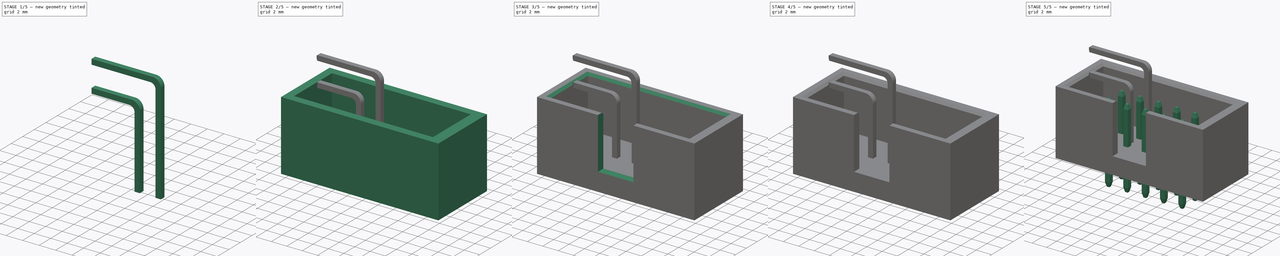
[diagram: build sequence overview — one tinted view per stage of 5, left to right]
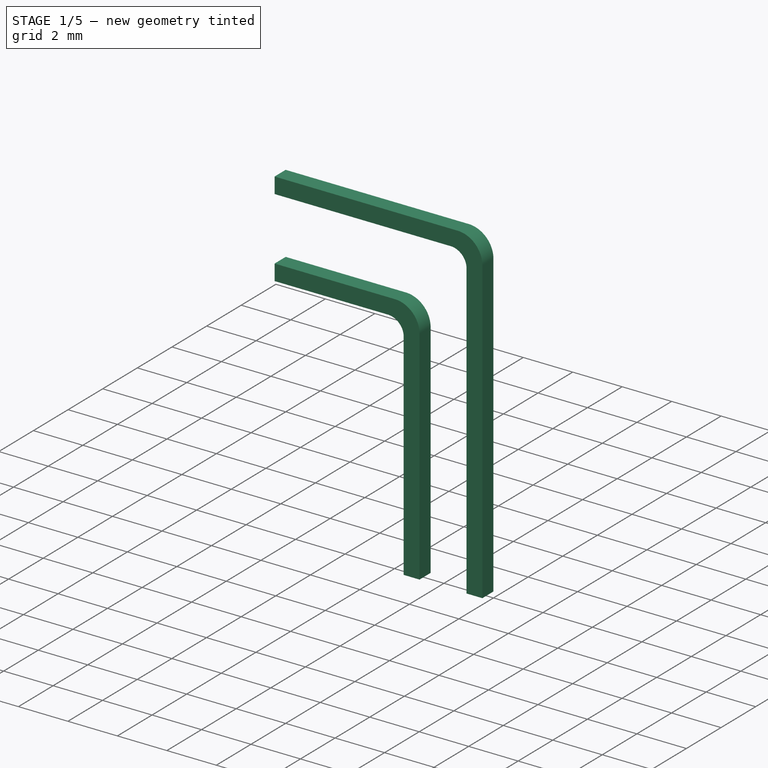
[diagram: stage 1 of 5 — iso view after this stage's code; geometry added in this stage tinted green]
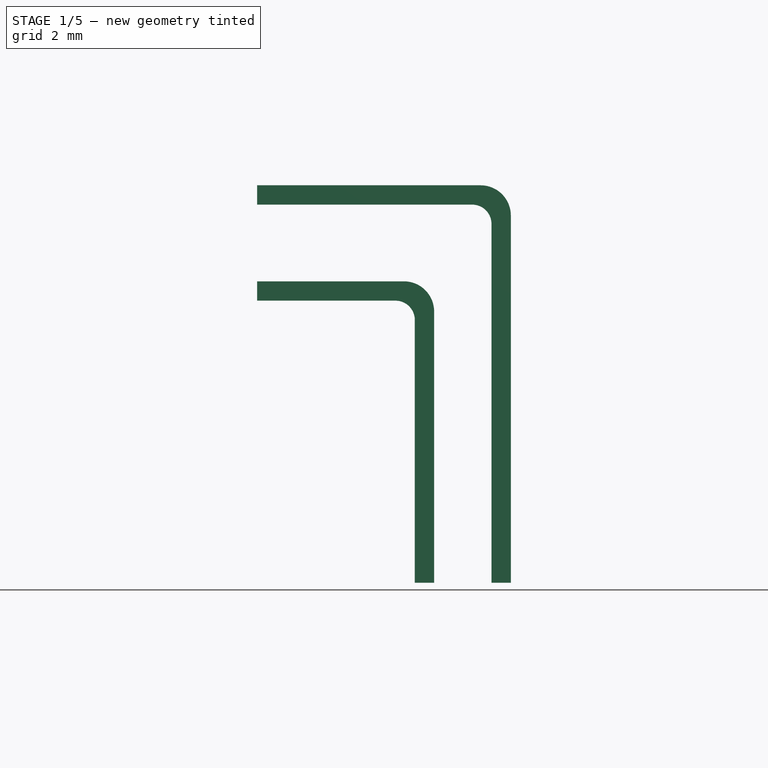
[diagram: stage 1 of 5 — front view after this stage's code; geometry added in this stage tinted green]
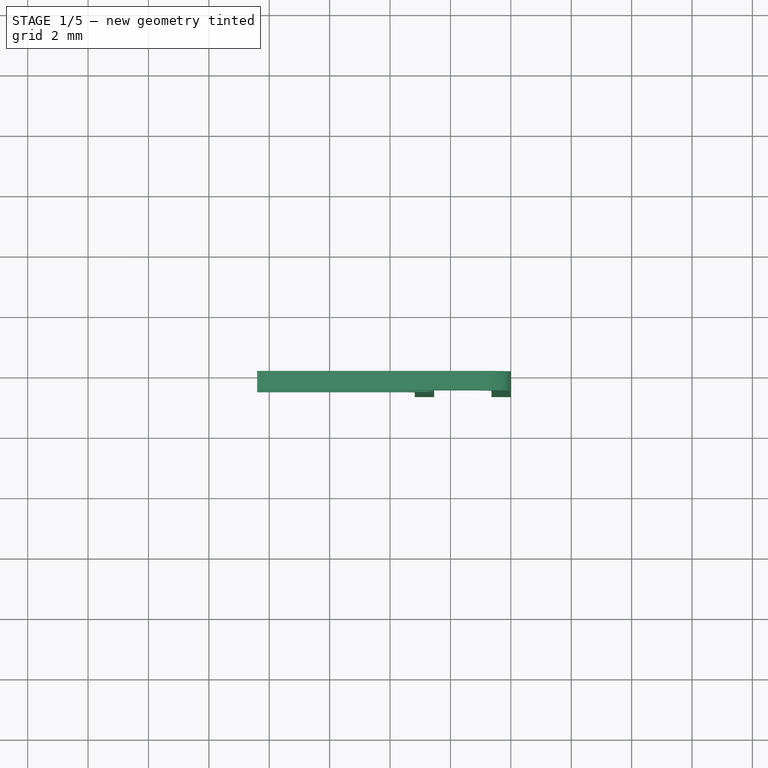
[diagram: stage 1 of 5 — top view after this stage's code; geometry added in this stage tinted green]
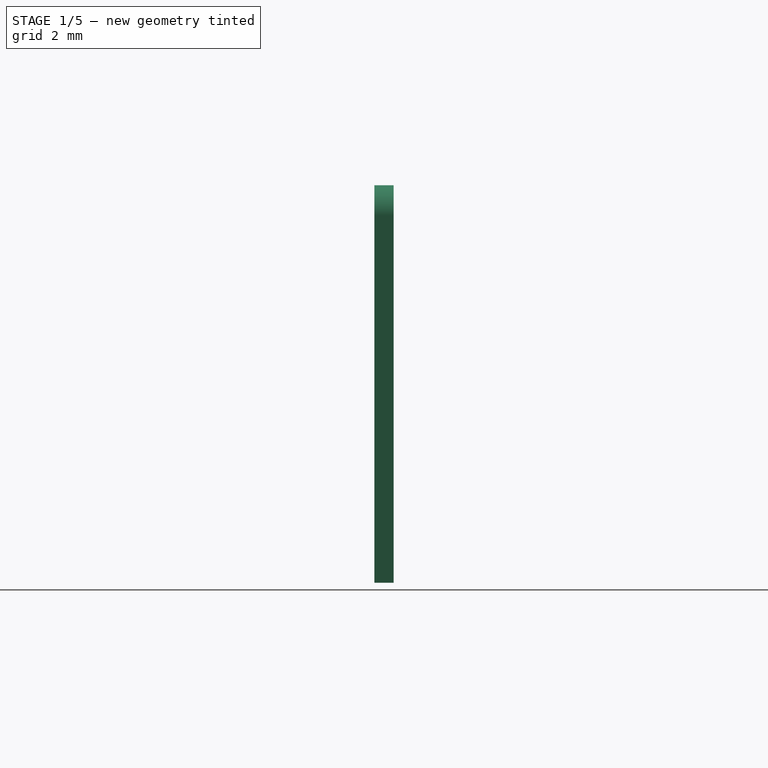
[diagram: stage 1 of 5 — right view after this stage's code; geometry added in this stage tinted green]
FCSTD DOCUMENT  (FreeCAD 0.16R6706 (Git))
Label: IDC10
License: All rights reserved
LicenseURL: http://en.wikipedia.org/wiki/All_rights_reserved
objects: Part::Box×4, Part::Cylinder×4, Part::Chamfer×2, Part::Cut×2, PartDesign::Fillet×2, Part::FeaturePython×1, Sketcher::SketchObject×1, PartDesign::Pad×1, PartDesign::Chamfer×1
note: 19 computed .brp shape members not serialized (recipe doc carries the construction recipe); baked Part::Feature solids carry a one-line shape summary decoded from their .brp

FEATURE [Sketcher::SketchObject] Sketch
  Placement = pos=(0,0,0) rot=(-1,0,0;4.71239rad)
  sketch-geometry (12):
    g0: LineSegment StartX=0 StartY=0 StartZ=0 EndX=0 EndY=13.16 EndZ=0
    g1: LineSegment StartX=0 StartY=13.16 StartZ=0 EndX=-8.4 EndY=13.16 EndZ=0
    g2: LineSegment StartX=-8.4 StartY=13.16 StartZ=0 EndX=-8.4 EndY=12.52 EndZ=0
    g3: LineSegment StartX=-8.4 StartY=12.52 StartZ=0 EndX=-0.64 EndY=12.52 EndZ=0
    g4: LineSegment StartX=-0.64 StartY=12.52 StartZ=0 EndX=-0.64 EndY=0 EndZ=0
    g5: LineSegment StartX=-0.64 StartY=0 StartZ=0 EndX=0 EndY=0 EndZ=0
    g6: LineSegment StartX=-2.54 StartY=0 StartZ=0 EndX=-2.54 EndY=9.98 EndZ=0
    g7: LineSegment StartX=-8.4 StartY=9.34 StartZ=0 EndX=-8.4 EndY=9.98 EndZ=0
    g8: LineSegment StartX=-3.18 StartY=9.34 StartZ=0 EndX=-3.18 EndY=0 EndZ=0
    g9: LineSegment StartX=-3.18 StartY=0 StartZ=0 EndX=-2.54 EndY=0 EndZ=0
    g10: LineSegment StartX=-8.4 StartY=9.98 StartZ=0 EndX=-2.54 EndY=9.98 EndZ=0
    g11: LineSegment StartX=-8.4 StartY=9.34 StartZ=0 EndX=-3.18 EndY=9.34 EndZ=0
  constraints (35):
    c: Coincident(g-1,g0)
    c: PointOnObject(g0,g-2)
    c: Coincident(g0,g1)
    c: Horizontal(g1)
    c: Coincident(g1,g2)
    c: Vertical(g2)
    c: Coincident(g2,g3)
    c: Horizontal(g3)
    c: Coincident(g3,g4)
    c: PointOnObject(g4,g-1)
    c: Vertical(g4)
    c: Coincident(g4,g5)
    c: Coincident(g5,g-1)
    c: DistanceX(g5,g5) = 0.64
    c: DistanceY(g0,g0) = 13.16
    c: DistanceX(g1,g1) = 8.4
    c: PointOnObject(g6,g-1)
    c: Vertical(g6)
    c: Vertical(g7)
    c: PointOnObject(g8,g-1)
    c: Vertical(g8)
    c: Coincident(g8,g9)
    c: Coincident(g9,g6)
    c: DistanceX(g8,g4) = 2.54
    c: Equal(g5,g2)
    c: Equal(g2,g7)
    c: Equal(g7,g9)
    c: Coincident(g10,g7)
    c: Coincident(g10,g6)
    c: Horizontal(g10)
    c: Coincident(g11,g7)
    c: Coincident(g11,g8)
    c: Horizontal(g11)
    c: DistanceY(g7,g2) = 2.54
    c: DistanceX(g2,g7) = 0
FEATURE [PartDesign::Pad] Pad
  Length = 0.64
  Length2 = 100
  Placement = pos=(0,0,0) rot=(-1,0,0;4.71239rad)
  Sketch = -> Sketch
  Type = 0
FEATURE [PartDesign::Fillet] Fillet
  Base = -> Pad [Edge20,Edge11]
  Placement = pos=(0,0,0) rot=(-1,0,0;4.71239rad)
  Radius = 0.64
FEATURE [PartDesign::Fillet] Fillet001
  Base = -> Fillet [Edge20,Edge41]
  Placement = pos=(0,0,0) rot=(-1,0,0;4.71239rad)
  Radius = 1
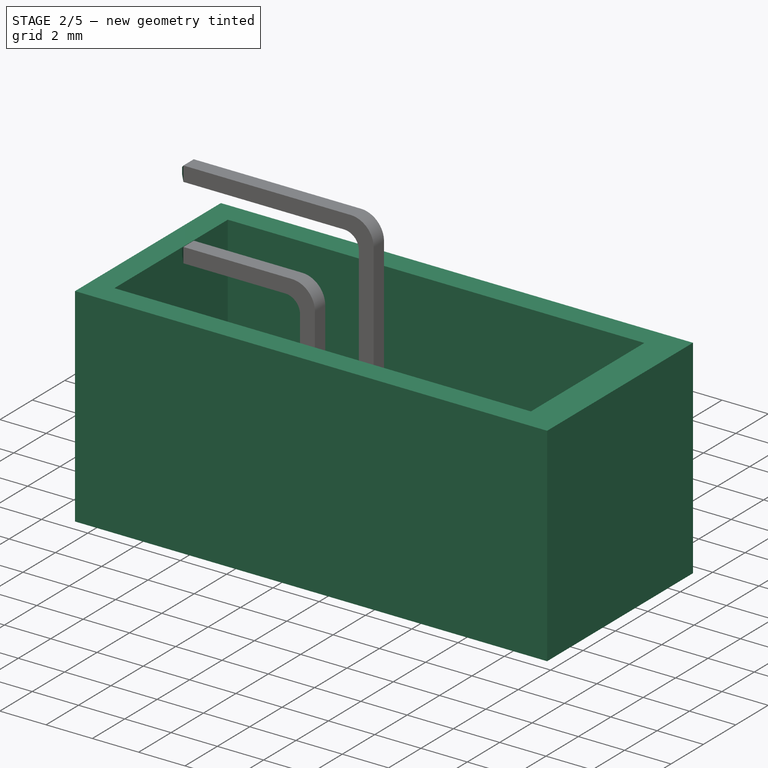
[diagram: stage 2 of 5 — iso view after this stage's code; geometry added in this stage tinted green]
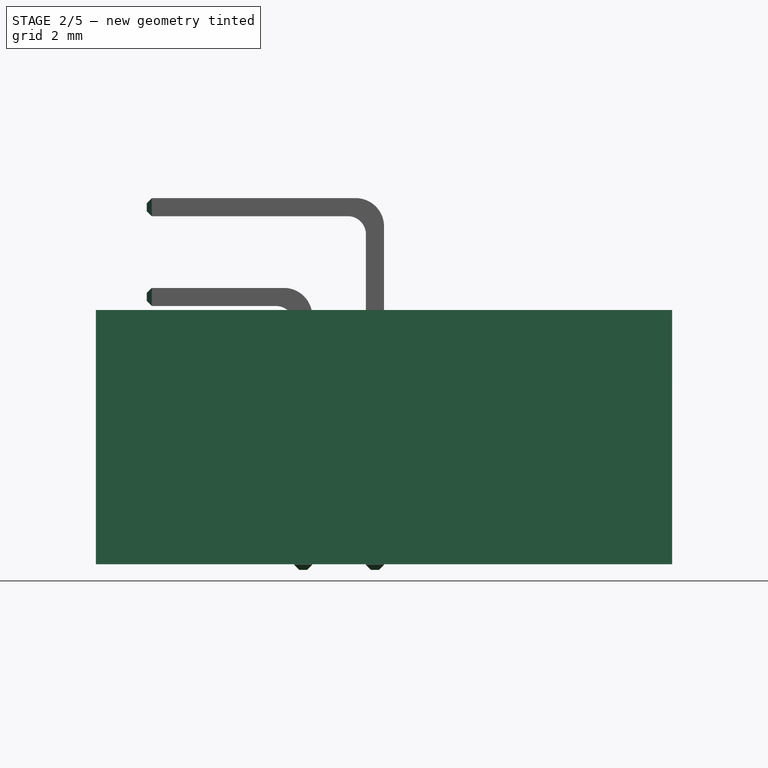
[diagram: stage 2 of 5 — front view after this stage's code; geometry added in this stage tinted green]
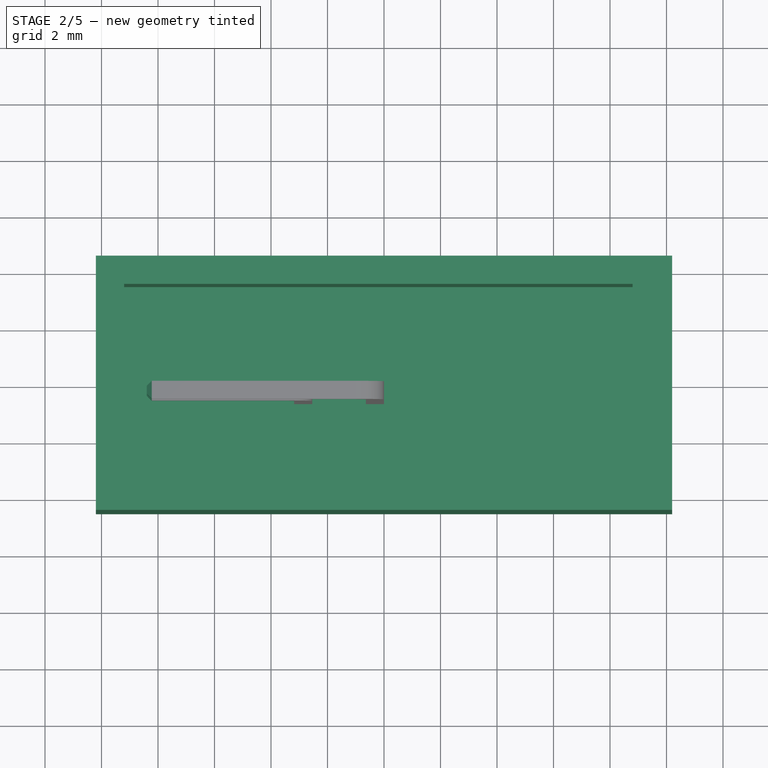
[diagram: stage 2 of 5 — top view after this stage's code; geometry added in this stage tinted green]
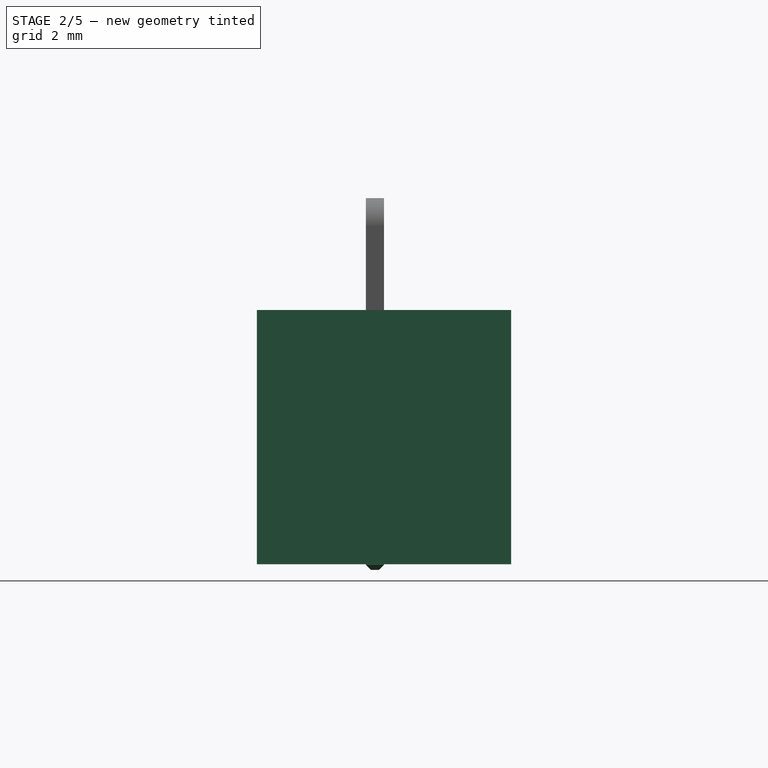
[diagram: stage 2 of 5 — right view after this stage's code; geometry added in this stage tinted green]
FEATURE [Part::Box] Box002  label="Cube002"
  Height = 9
  Length = 20.4
  Placement = pos=(-10.2,-4.5,0.2) rot=(0,0,1;0rad)
  Width = 9
FEATURE [Part::Box] Box003  label="Cube003"
  Height = 6.65
  Length = 18
  Placement = pos=(-9.2,-3.5,2.55) rot=(0,0,1;0rad)
  Width = 7
FEATURE [Part::Cut] Cut
  Base = -> Box002
  Tool = -> Box003
FEATURE [PartDesign::Chamfer] Chamfer002
  Base = -> Fillet001 [Edge27,Edge34,Edge39,Edge38,Edge3,Edge15,Edge10,Edge14,Edge40,Edge44,Edge30,Edge45,Edge21,Edge20,Edge16,Edge6]
  Placement = pos=(0,0,0) rot=(-1,0,0;4.71239rad)
  Size = 0.18
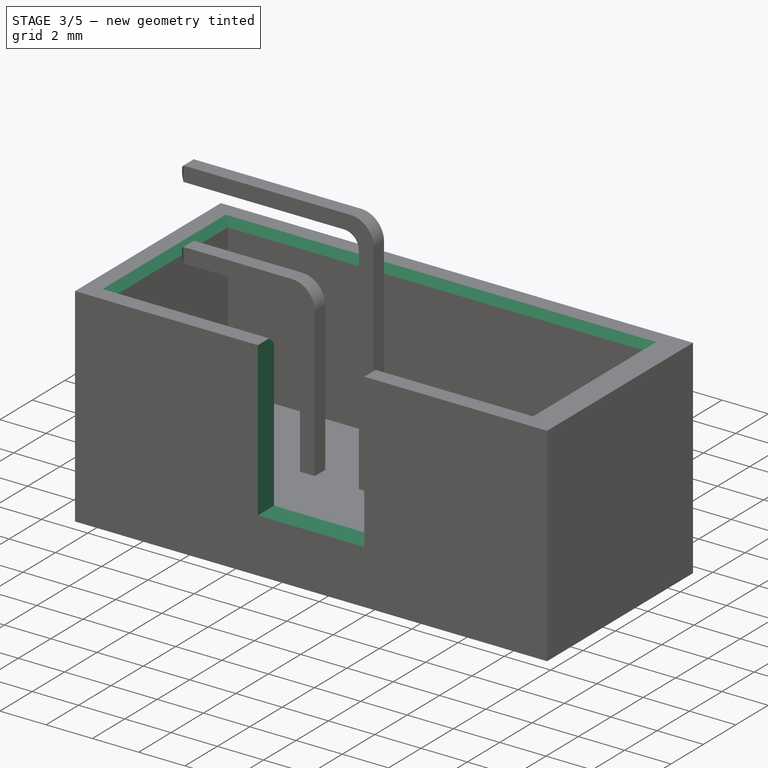
[diagram: stage 3 of 5 — iso view after this stage's code; geometry added in this stage tinted green]
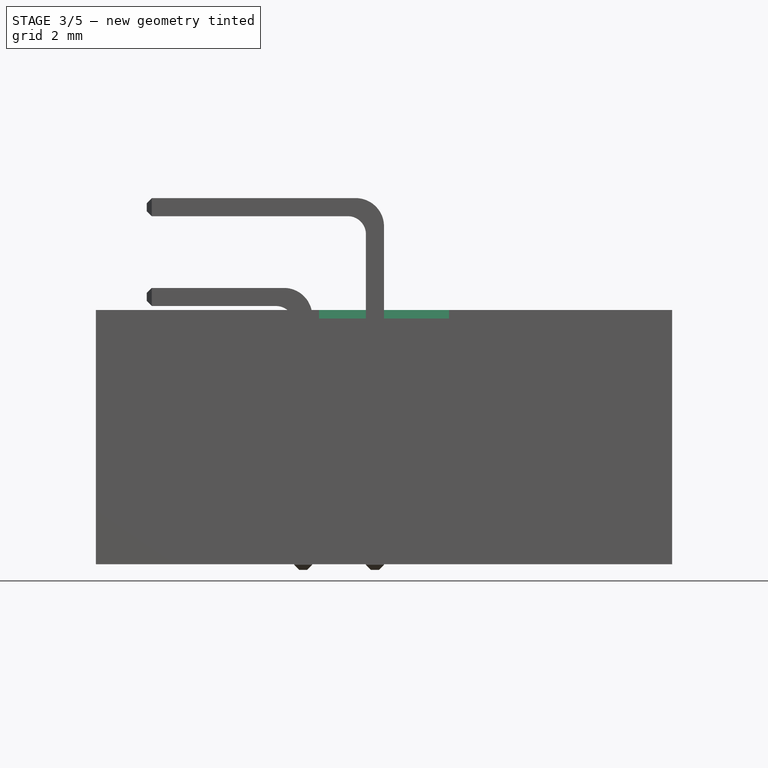
[diagram: stage 3 of 5 — front view after this stage's code; geometry added in this stage tinted green]
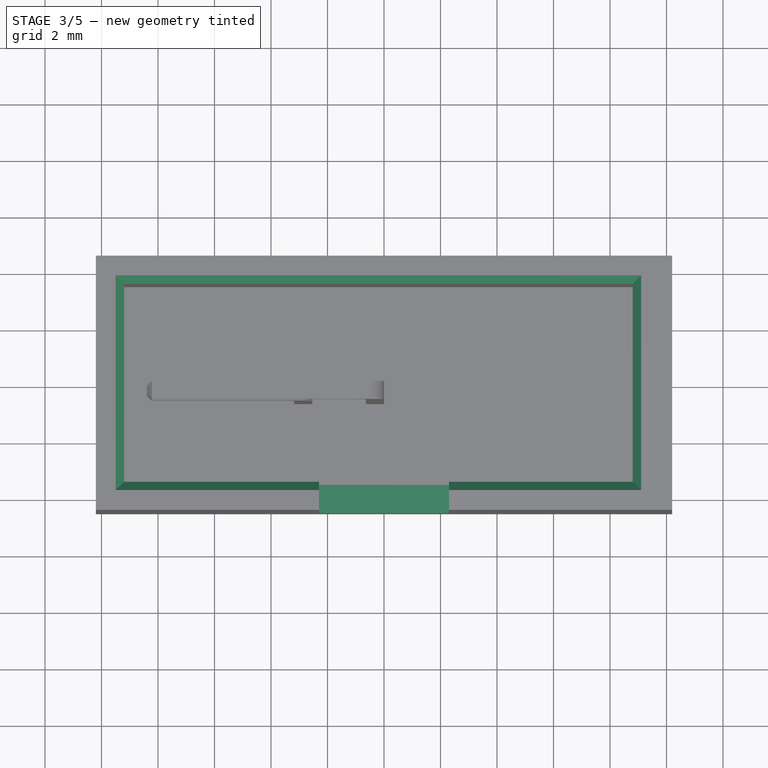
[diagram: stage 3 of 5 — top view after this stage's code; geometry added in this stage tinted green]
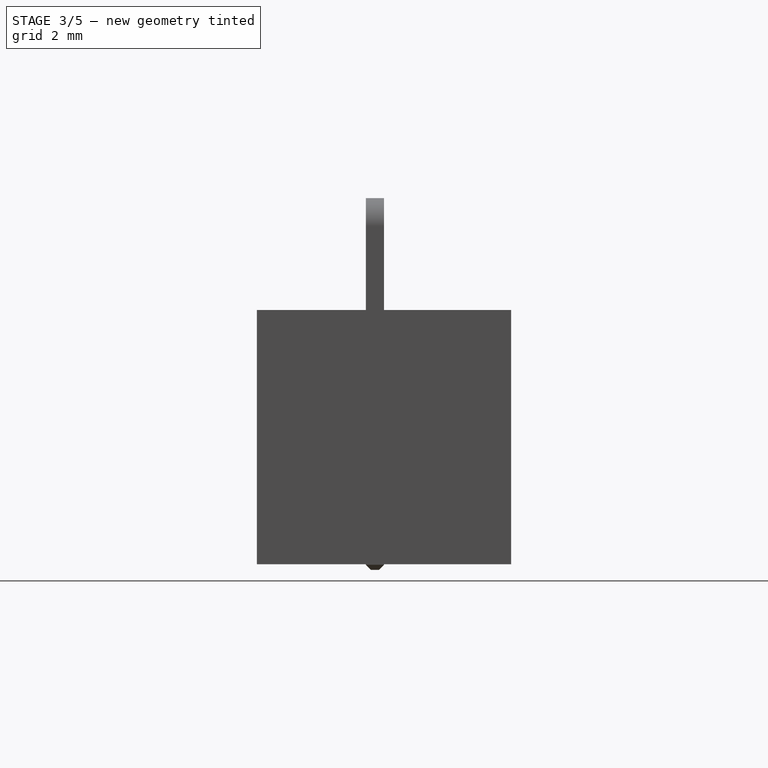
[diagram: stage 3 of 5 — right view after this stage's code; geometry added in this stage tinted green]
FEATURE [Part::Box] Box004  label="Cube004"
  Height = 6.65
  Length = 4.6
  Placement = pos=(-2.3,-5,2.55) rot=(0,0,1;0rad)
  Width = 2
FEATURE [Part::Cut] Cut001
  Base = -> Cut
  Tool = -> Box004
FEATURE [Part::Chamfer] Chamfer001
  Base = -> Cut001
  Edges = 5 edges r=0.3: [Edge15,Edge16,Edge17,Edge18,Edge19]
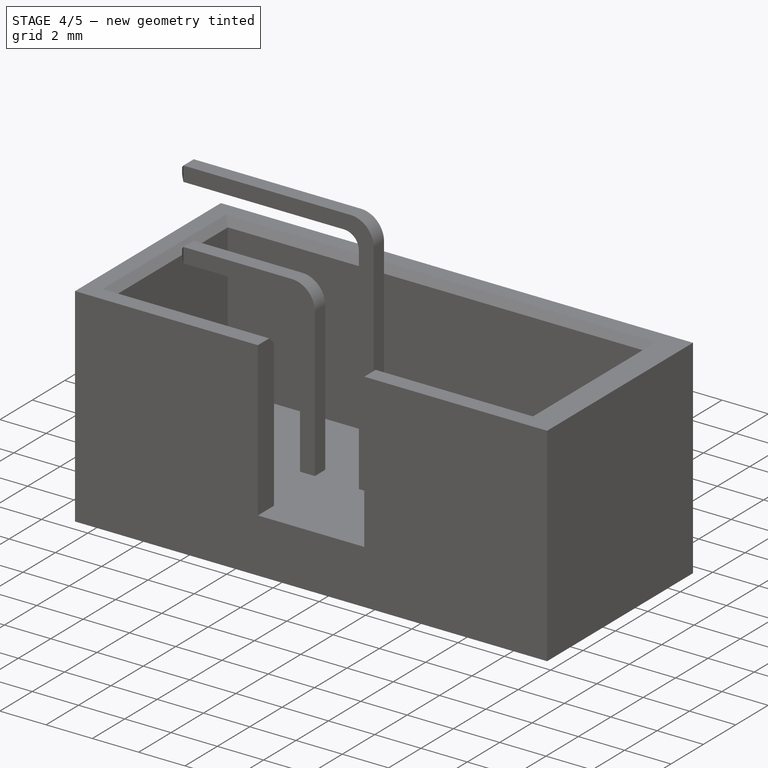
[diagram: stage 4 of 5 — iso view after this stage's code; geometry added in this stage tinted green]
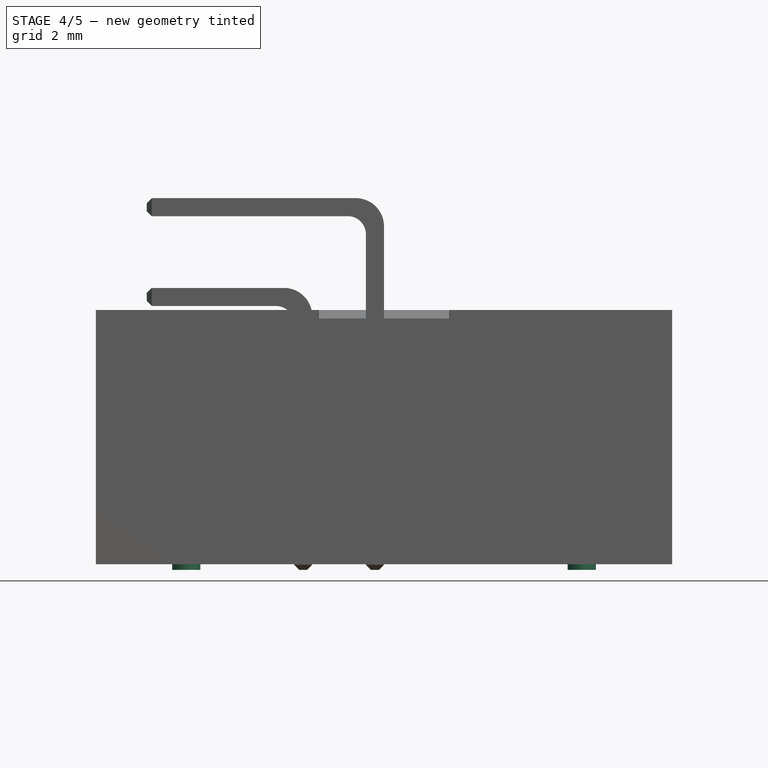
[diagram: stage 4 of 5 — front view after this stage's code; geometry added in this stage tinted green]
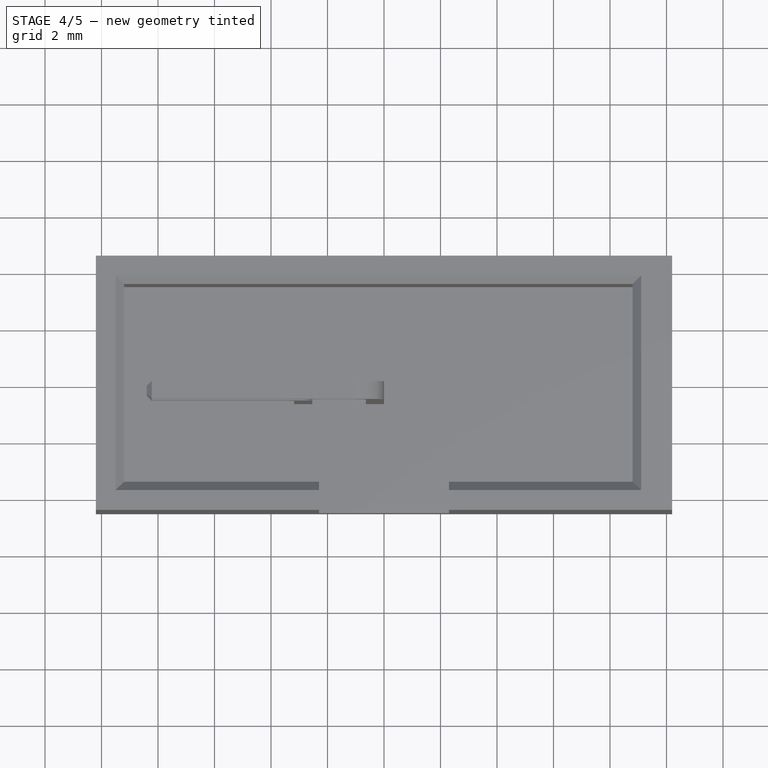
[diagram: stage 4 of 5 — top view after this stage's code; geometry added in this stage tinted green]
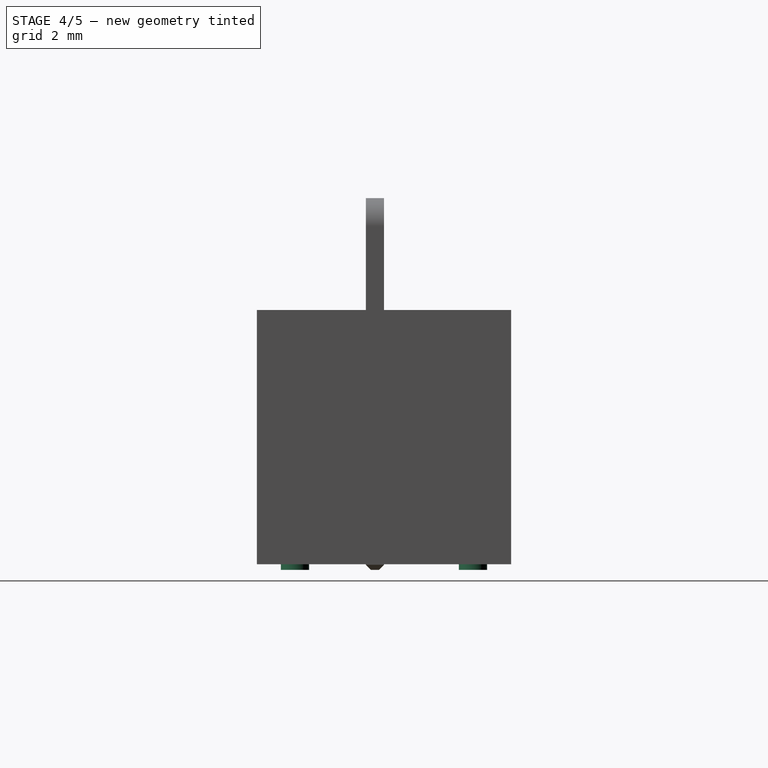
[diagram: stage 4 of 5 — right view after this stage's code; geometry added in this stage tinted green]
FEATURE [Part::Cylinder] Cylinder
  Angle = 360
  Height = 0.2
  Placement = pos=(7,3.15,0) rot=(0,0,1;0rad)
  Radius = 0.5
FEATURE [Part::Cylinder] Cylinder001
  Angle = 360
  Height = 0.2
  Placement = pos=(7,-3.15,0) rot=(0,0,1;0rad)
  Radius = 0.5
FEATURE [Part::Cylinder] Cylinder002
  Angle = 360
  Height = 0.2
  Placement = pos=(-7,3.15,0) rot=(0,0,1;0rad)
  Radius = 0.5
FEATURE [Part::Cylinder] Cylinder003
  Angle = 360
  Height = 0.2
  Placement = pos=(-7,-3.15,0) rot=(0,0,1;0rad)
  Radius = 0.5
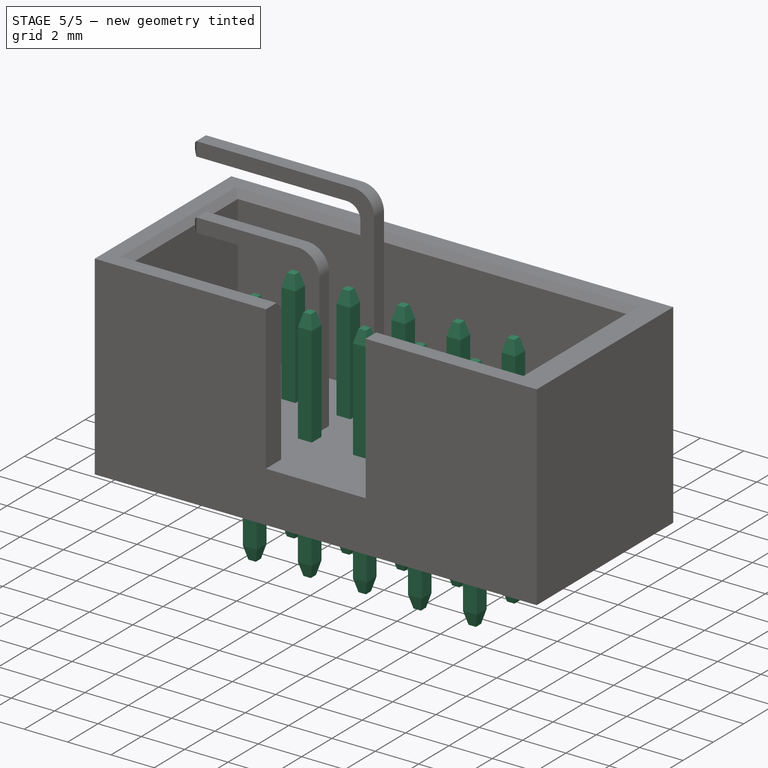
[diagram: stage 5 of 5 — iso view after this stage's code; geometry added in this stage tinted green]
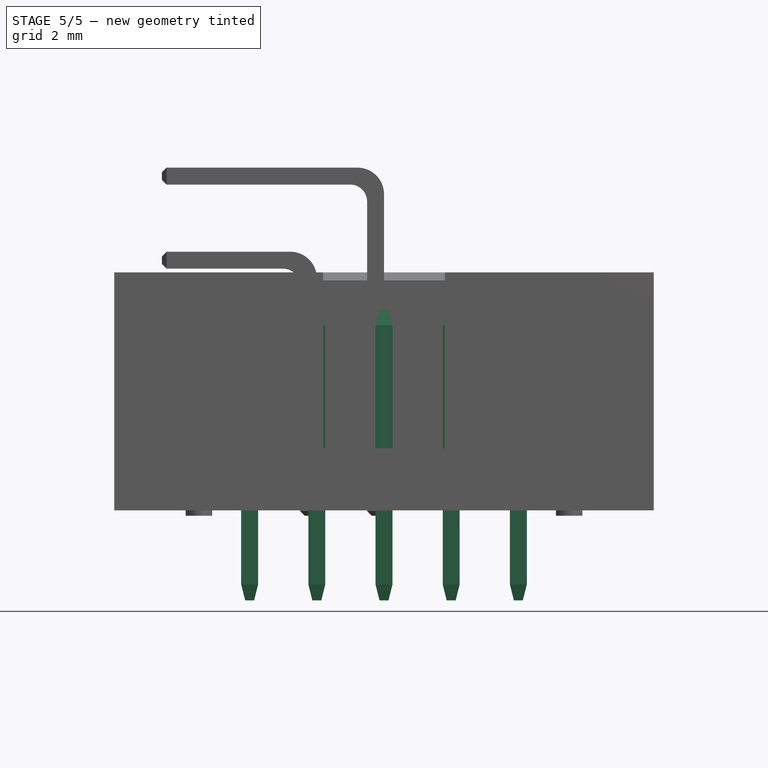
[diagram: stage 5 of 5 — front view after this stage's code; geometry added in this stage tinted green]
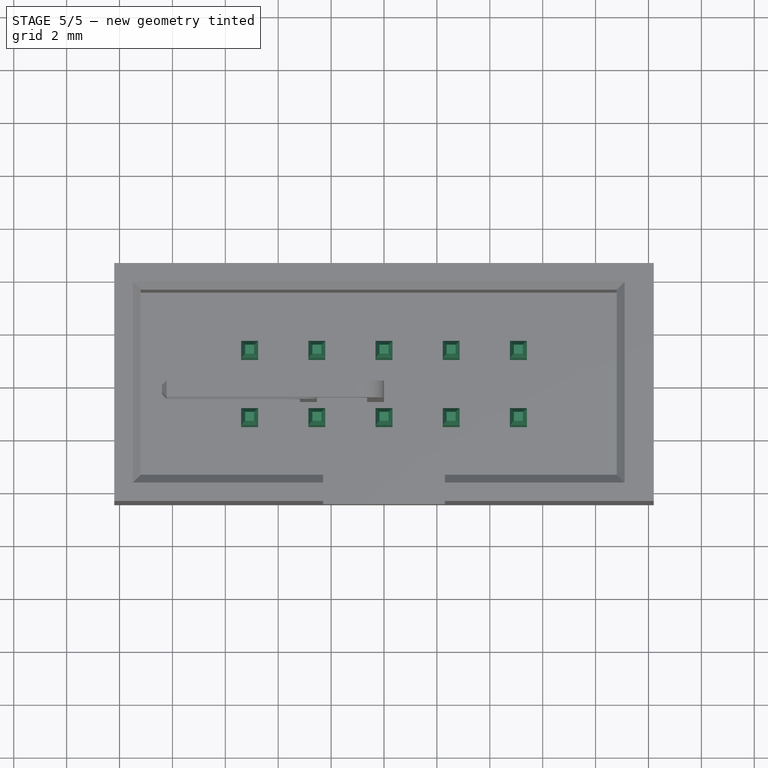
[diagram: stage 5 of 5 — top view after this stage's code; geometry added in this stage tinted green]
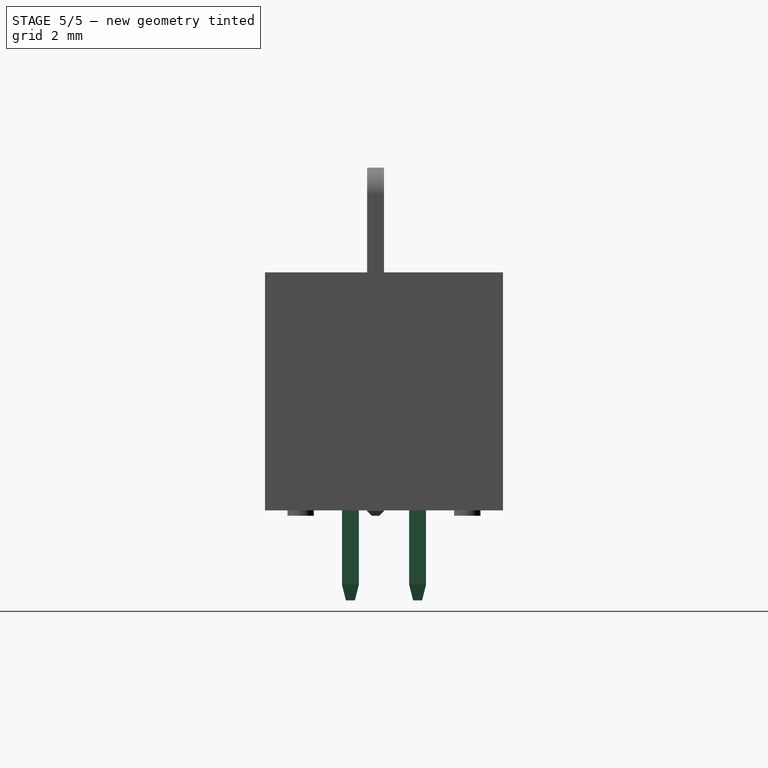
[diagram: stage 5 of 5 — right view after this stage's code; geometry added in this stage tinted green]
FEATURE [Part::Box] Box  label="Cube"
  Height = 11
  Length = 0.64
  Width = 0.64
FEATURE [Part::Chamfer] Chamfer  label="pin"
  Base = -> Box
  Edges = 8 edges: [Edge2 r1=0.6 r2=0.15,Edge4 r1=0.6 r2=0.15,Edge6 r1=0.6 r2=0.15,Edge8 r1=0.6 r2=0.15,Edge9 r1=0.6 r2=0.15,Edge10 r1=0.6 r2=0.15,Edge11 r1=0.6 r2=0.15,Edge12 r1=0.6 r2=0.15]
  Placement = pos=(-0.32,-1.59,0) rot=(0,0,1;0rad)
FEATURE [Part::FeaturePython] Array  label="pins"  # Draft array (typed FeaturePython)
  Angle = 360
  ArrayType = 0
  Axis = (0,0,1)
  Base = -> Chamfer
  Center = (0,0,0)
  Fuse = false
  IntervalAxis = (0,0,0)
  IntervalX = (2.54,0,0)
  IntervalY = (0,2.54,0)
  IntervalZ = (0,0,0)
  NumberPolar = 1
  NumberX = 5
  NumberY = 2
  NumberZ = 1
  Placement = pos=(-5.08,0,-3.2) rot=(0,0,1;0rad)
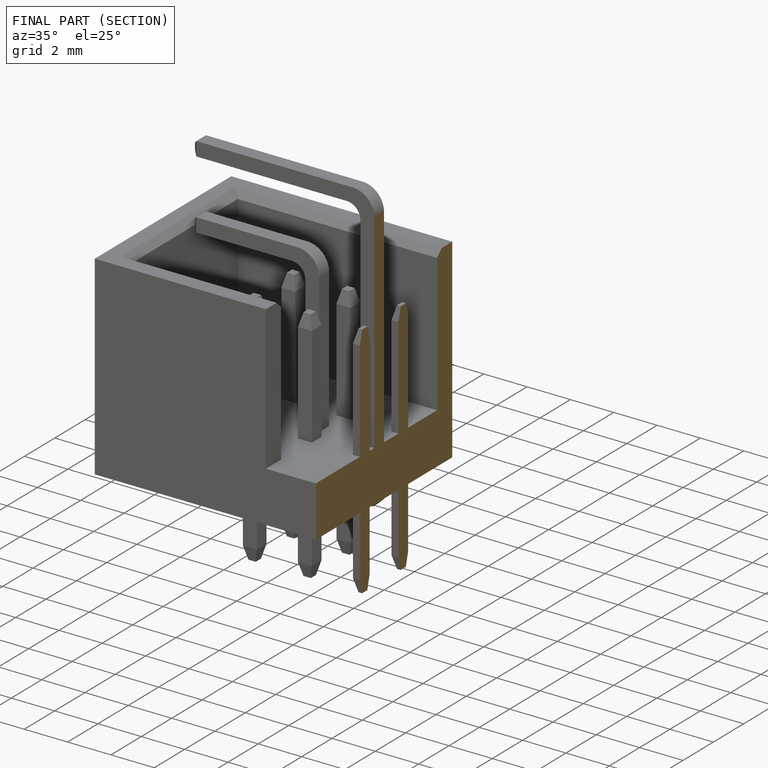
[diagram: finished part — half-section view (interior)]
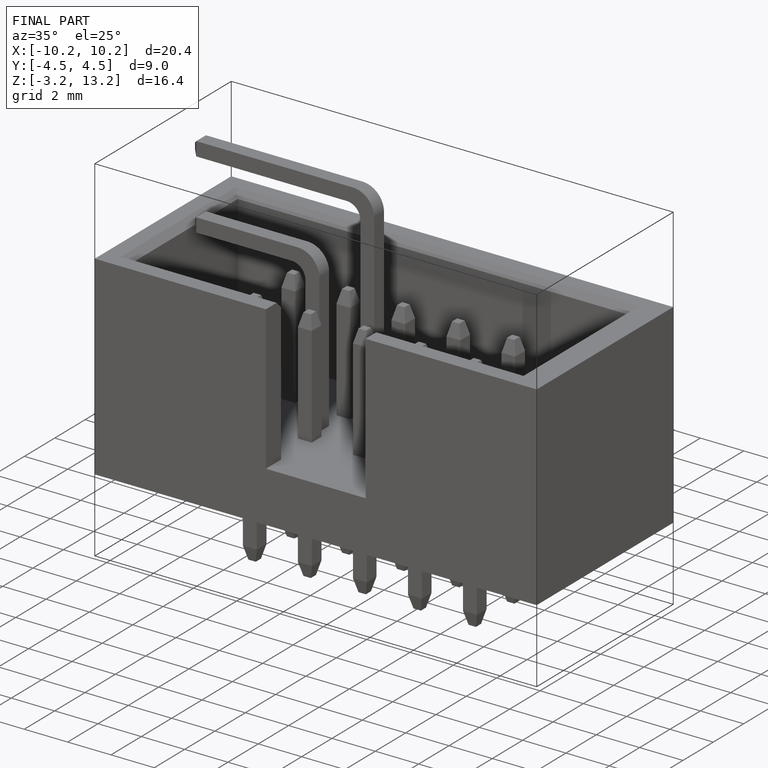
[diagram: finished part — iso view with bounding-box wireframe]
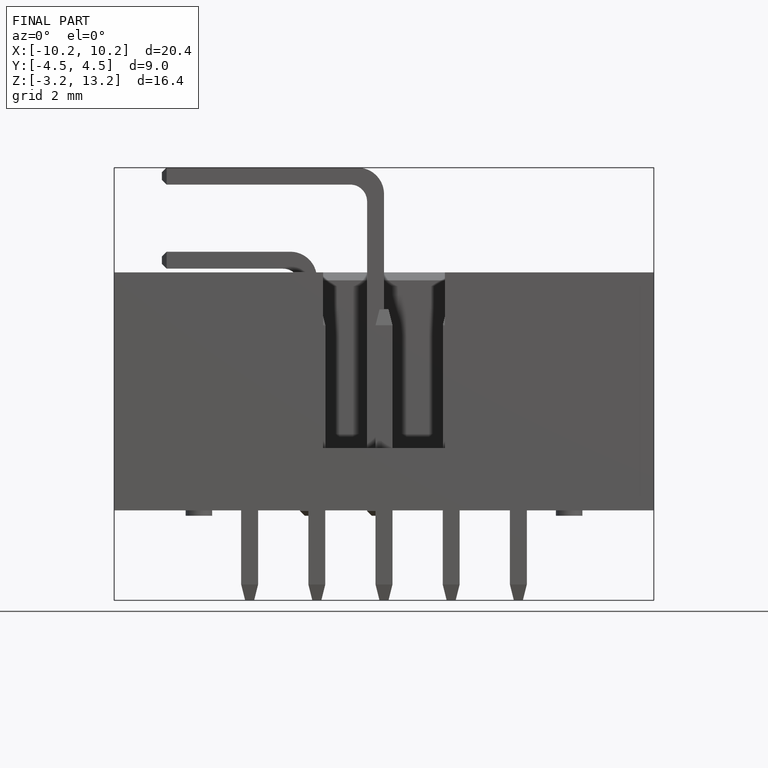
[diagram: finished part — front view with bounding-box wireframe]
